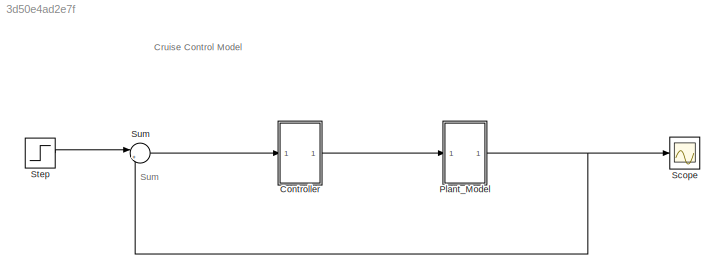
MODEL slx_3d50e4ad2e7f
KIND model
CONFIG AbsTol = auto
CONFIG EnableMultiTasking = off
CONFIG FixedStep = auto
CONFIG MaxStep = auto
CONFIG MinStep = auto
CONFIG RelTol = 1e-3
CONFIG SampleTimeConstraint = Unconstrained
CONFIG Solver = ode45
CONFIG SolverName = ode45
CONFIG StartTime = 0.0
CONFIG StopTime = 20.0
WORKSPACE source: mxarray member
WORKSPACE b = 50
WORKSPACE kd = 1
WORKSPACE ki = 500
WORKSPACE kp = 5000
WORKSPACE m = 1000
WORKSPACE u = 10
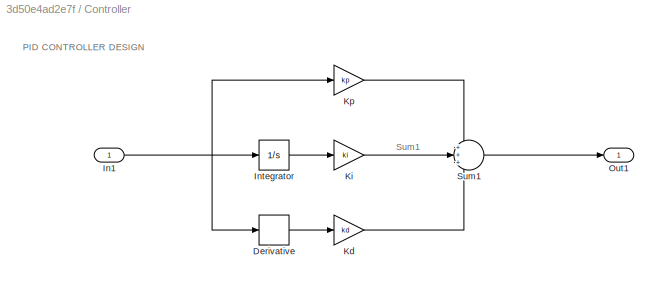
BLOCK [SubSystem] Controller
  Ports = [1, 1]
  RequestExecContextInheritance = off
  TreatAsAtomicUnit = on
BLOCK [Derivative] Controller/Derivative
BLOCK [Inport] Controller/In1
BLOCK [Integrator] Controller/Integrator
  Ports = [1, 1]
BLOCK [Gain] Controller/Kd
  Gain = kd
BLOCK [Gain] Controller/Ki
  Gain = ki
BLOCK [Gain] Controller/Kp
  Gain = kp
BLOCK [Outport] Controller/Out1
BLOCK [Sum] Controller/Sum1
  Inputs = +++
  NameLocation = top
  Ports = [3, 1]
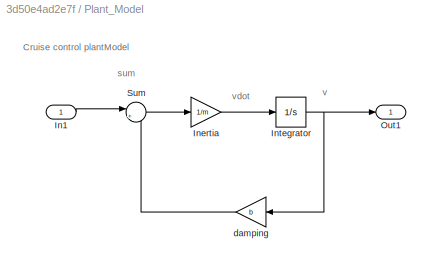
BLOCK [SubSystem] Plant_Model
  Ports = [1, 1]
  RequestExecContextInheritance = off
BLOCK [Inport] Plant_Model/In1
BLOCK [Gain] Plant_Model/Inertia
  Gain = 1/m
BLOCK [Integrator] Plant_Model/Integrator
  Ports = [1, 1]
BLOCK [Outport] Plant_Model/Out1
BLOCK [Sum] Plant_Model/Sum
  Inputs = |+-
  Ports = [2, 1]
BLOCK [Gain] Plant_Model/damping
  Gain = b
BLOCK [Scope] Scope
  Floating = off
  NumInputPorts = 1
  Ports = [1]
  ScopeSpecificationString = Simulink.scopes.TimeScopeBlockCfg('CurrentConfiguration', extmgr.ConfigurationSet(extmgr.Configuration('Core','General UI',true),extmgr.Configuration('Core','Source UI',true),extmgr.Configuration('Sources','WiredSimulink',true),extmgr.Configuration('Visuals','Time Domain',true,'SerializedDisplays',{struct('MinYLimReal','-1.26075','MaxYLimReal','11.34678','YLabelReal','','MinYLimMag','0.00000','Max...<+1406ch>
BLOCK [Step] Step
  After = u
  SampleTime = 0
  Time = 0
BLOCK [Sum] Sum
  Inputs = |+-
  Ports = [2, 1]
ANNOTATION (root): Cruise Control Model
ANNOTATION (root): Sum
ANNOTATION Controller: PID CONTROLLER DESIGN
ANNOTATION Controller: Sum1
ANNOTATION Plant_Model: Cruise control plantModel
ANNOTATION Plant_Model: sum
ANNOTATION Plant_Model: v
ANNOTATION Plant_Model: vdot
LINE Controller/Derivative:1 -> Controller/Kd:1
NET Controller/In1:1 -> Controller/Derivative:1, Controller/Integrator:1, Controller/Kp:1
LINE Controller/Integrator:1 -> Controller/Ki:1
LINE Controller/Kd:1 -> Controller/Sum1:3
LINE Controller/Ki:1 -> Controller/Sum1:2
LINE Controller/Kp:1 -> Controller/Sum1:1
LINE Controller/Sum1:1 -> Controller/Out1:1
LINE Controller:1 -> Plant_Model:1
LINE Plant_Model/In1:1 -> Plant_Model/Sum:1
LINE Plant_Model/Inertia:1 -> Plant_Model/Integrator:1
NET Plant_Model/Integrator:1 -> Plant_Model/Out1:1, Plant_Model/damping:1
LINE Plant_Model/Sum:1 -> Plant_Model/Inertia:1
LINE Plant_Model/damping:1 -> Plant_Model/Sum:2
NET Plant_Model:1 -> Scope:1, Sum:2
LINE Step:1 -> Sum:1
LINE Sum:1 -> Controller:1
note: NET lines group one-source signal fan-out (src -> all destinations, sorted); 1:1 wires keep LINE
